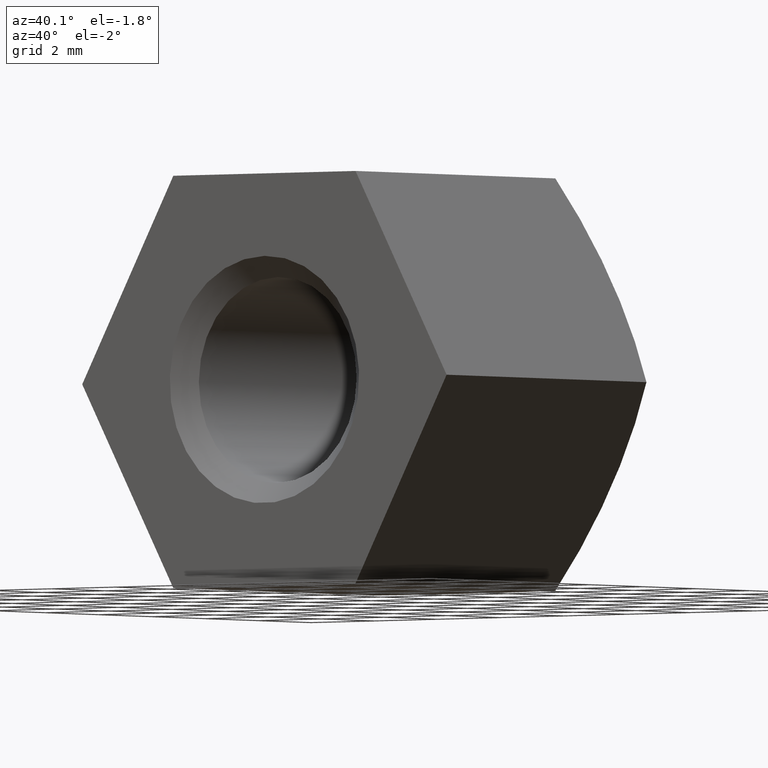
[diagram: clean part render]
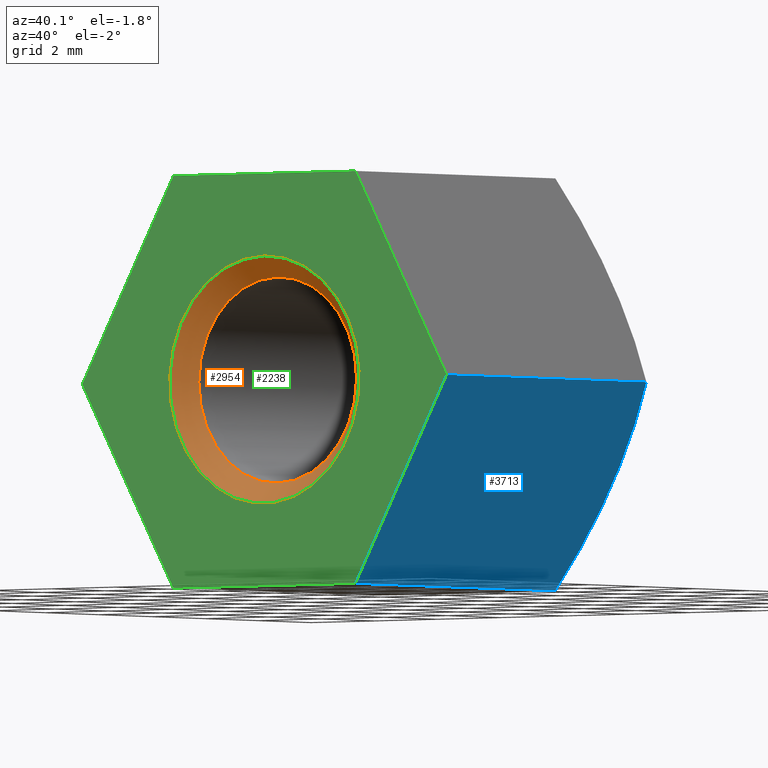
[diagram: same view with three faces highlighted in distinct colors, each labeled with its STEP entity id]
A machine part, auxiliary view with three faces highlighted in distinct colors.
Their STEP definitions:

[orange] entity #2954 — the highlighted conical surface has half-angle 45 deg.
#149 = EDGE_CURVE ( 'NONE', #7589, #7589, #13601, .T. ) ;
#263 = ORIENTED_EDGE ( 'NONE', *, *, #149, .F. ) ;
#838 = DIRECTION ( 'NONE',  ( 0.000000000000000000, 0.000000000000000000, 1.000000000000000000 ) ) ;
#1752 = DIRECTION ( 'NONE',  ( 0.000000000000000000, -1.000000000000000000, 0.000000000000000000 ) ) ;
#2279 = DIRECTION ( 'NONE',  ( 0.000000000000000000, -1.000000000000000000, 0.000000000000000000 ) ) ;
#2732 = CARTESIAN_POINT ( 'NONE',  ( 0.000000000000000000, 0.000000000000000000, 0.000000000000000000 ) ) ;
#2954 = ADVANCED_FACE ( 'NONE', ( #11353, #3035 ), #8397, .F. ) ;
#3035 = FACE_BOUND ( 'NONE', #11674, .T. ) ;
#3827 = DIRECTION ( 'NONE',  ( 0.000000000000000000, 1.000000000000000000, 0.000000000000000000 ) ) ;
#3890 = ORIENTED_EDGE ( 'NONE', *, *, #5806, .F. ) ;
#5019 = CARTESIAN_POINT ( 'NONE',  ( 0.000000000000000000, 0.000000000000000000, 2.999999999999993783 ) ) ;
#5563 = CARTESIAN_POINT ( 'NONE',  ( 0.000000000000000000, 0.5000000000000017764, 0.000000000000000000 ) ) ;
#5608 = DIRECTION ( 'NONE',  ( 0.000000000000000000, 0.000000000000000000, 1.000000000000000000 ) ) ;
#5806 = EDGE_CURVE ( 'NONE', #13622, #13622, #7826, .T. ) ;
#5833 = AXIS2_PLACEMENT_3D ( 'NONE', #5563, #2279, #5608 ) ;
#7320 = CARTESIAN_POINT ( 'NONE',  ( 0.000000000000000000, 0.5000000000000017764, 0.000000000000000000 ) ) ;
#7589 = VERTEX_POINT ( 'NONE', #10385 ) ;
#7826 = CIRCLE ( 'NONE', #11591, 2.999999999999993783 ) ;
#8397 = CONICAL_SURFACE ( 'NONE', #10934, 2.499999999999988898, 0.7853981633974517207 ) ;
#9496 = DIRECTION ( 'NONE',  ( 0.000000000000000000, 0.000000000000000000, -1.000000000000000000 ) ) ;
#10385 = CARTESIAN_POINT ( 'NONE',  ( 0.000000000000000000, 0.5000000000000017764, 2.499999999999988898 ) ) ;
#10934 = AXIS2_PLACEMENT_3D ( 'NONE', #7320, #1752, #9496 ) ;
#11353 = FACE_OUTER_BOUND ( 'NONE', #13738, .T. ) ;
#11591 = AXIS2_PLACEMENT_3D ( 'NONE', #2732, #3827, #838 ) ;
#11674 = EDGE_LOOP ( 'NONE', ( #263 ) ) ;
#13601 = CIRCLE ( 'NONE', #5833, 2.499999999999988898 ) ;
#13622 = VERTEX_POINT ( 'NONE', #5019 ) ;
#13738 = EDGE_LOOP ( 'NONE', ( #3890 ) ) ;

[blue] entity #3713 — the highlighted planar face has unit normal (-0.866, 0, 0.5).
#936 = LINE ( 'NONE', #9867, #5777 ) ;
#952 = AXIS2_PLACEMENT_3D ( 'NONE', #11639, #13854, #3809 ) ;
#1328 = PLANE ( 'NONE',  #4817 ) ;
#2192 = VECTOR ( 'NONE', #4194, 1000.000000000000000 ) ;
#2752 = VERTEX_POINT ( 'NONE', #10694 ) ;
#3713 = ADVANCED_FACE ( 'NONE', ( #4420 ), #1328, .F. ) ;
#3809 = DIRECTION ( 'NONE',  ( 0.5000000000000004441, 7.116227354264032763E-15, 0.8660254037844384856 ) ) ;
#4194 = DIRECTION ( 'NONE',  ( -0.000000000000000000, -1.000000000000000000, -0.000000000000000000 ) ) ;
#4420 = FACE_OUTER_BOUND ( 'NONE', #13612, .T. ) ;
#4479 = DIRECTION ( 'NONE',  ( 0.5000000000000004441, 0.000000000000000000, 0.8660254037844383745 ) ) ;
#4798 = EDGE_CURVE ( 'NONE', #9825, #11640, #936, .T. ) ;
#4817 = AXIS2_PLACEMENT_3D ( 'NONE', #10064, #8861, #4479 ) ;
#5077 = CARTESIAN_POINT ( 'NONE',  ( 5.773502691896258199, 7.519822558706331428, 2.168404344971009262E-15 ) ) ;
#5704 = DIRECTION ( 'NONE',  ( -0.5000000000000004441, 0.000000000000000000, -0.8660254037844383745 ) ) ;
#5777 = VECTOR ( 'NONE', #8905, 1000.000000000000000 ) ;
#5896 = CARTESIAN_POINT ( 'NONE',  ( 5.773502691896257311, 0.000000000000000000, 3.478469870610631907E-15 ) ) ;
#6336 = LINE ( 'NONE', #14104, #2192 ) ;
#6390 = EDGE_CURVE ( 'NONE', #11640, #11283, #11810, .T. ) ;
#6418 = CARTESIAN_POINT ( 'NONE',  ( 2.886751345948122438, 0.000000000000000000, -5.000000000000000888 ) ) ;
#6844 = CIRCLE ( 'NONE', #952, 10.90871211463571555 ) ;
#7430 = ORIENTED_EDGE ( 'NONE', *, *, #4798, .T. ) ;
#8861 = DIRECTION ( 'NONE',  ( -0.8660254037844383745, 0.000000000000000000, 0.5000000000000004441 ) ) ;
#8871 = VECTOR ( 'NONE', #5704, 1000.000000000000114 ) ;
#8896 = ORIENTED_EDGE ( 'NONE', *, *, #11742, .T. ) ;
#8905 = DIRECTION ( 'NONE',  ( -0.000000000000000000, -1.000000000000000000, -0.000000000000000000 ) ) ;
#9825 = VERTEX_POINT ( 'NONE', #5077 ) ;
#9867 = CARTESIAN_POINT ( 'NONE',  ( 5.773502691896257311, 9.000000000000000000, 3.478469870610631907E-15 ) ) ;
#9883 = EDGE_CURVE ( 'NONE', #2752, #11283, #6336, .T. ) ;
#10064 = CARTESIAN_POINT ( 'NONE',  ( 5.773502691896257311, 9.000000000000000000, 3.478469870610631907E-15 ) ) ;
#10694 = CARTESIAN_POINT ( 'NONE',  ( 2.886751345948126435, 7.519822558706331428, -5.000000000000001776 ) ) ;
#11283 = VERTEX_POINT ( 'NONE', #6418 ) ;
#11639 = CARTESIAN_POINT ( 'NONE',  ( 4.330127018922190096, -3.000000000000000888, -2.500000000000000444 ) ) ;
#11640 = VERTEX_POINT ( 'NONE', #5896 ) ;
#11742 = EDGE_CURVE ( 'NONE', #2752, #9825, #6844, .T. ) ;
#11810 = LINE ( 'NONE', #13567, #8871 ) ;
#13021 = ORIENTED_EDGE ( 'NONE', *, *, #9883, .F. ) ;
#13567 = CARTESIAN_POINT ( 'NONE',  ( 5.773502691896257311, 0.000000000000000000, 3.478469870610631907E-15 ) ) ;
#13612 = EDGE_LOOP ( 'NONE', ( #13021, #8896, #7430, #14267 ) ) ;
#13854 = DIRECTION ( 'NONE',  ( 0.8660254037844384856, -0.000000000000000000, -0.5000000000000004441 ) ) ;
#14104 = CARTESIAN_POINT ( 'NONE',  ( 2.886751345948122438, 9.000000000000000000, -5.000000000000000888 ) ) ;
#14267 = ORIENTED_EDGE ( 'NONE', *, *, #6390, .T. ) ;

[green] entity #2238 — the highlighted planar face has unit normal (0, 1, 0).
#252 = LINE ( 'NONE', #3170, #1316 ) ;
#306 = EDGE_LOOP ( 'NONE', ( #12069, #5576, #11244, #3744, #12542, #8521 ) ) ;
#319 = EDGE_CURVE ( 'NONE', #7372, #11640, #252, .T. ) ;
#683 = CARTESIAN_POINT ( 'NONE',  ( 0.000000000000000000, 0.000000000000000000, 0.000000000000000000 ) ) ;
#838 = DIRECTION ( 'NONE',  ( 0.000000000000000000, 0.000000000000000000, 1.000000000000000000 ) ) ;
#1316 = VECTOR ( 'NONE', #8919, 1000.000000000000000 ) ;
#1495 = FACE_BOUND ( 'NONE', #8803, .T. ) ;
#1603 = DIRECTION ( 'NONE',  ( 1.000000000000000000, 0.000000000000000000, -1.502314598737158045E-16 ) ) ;
#2024 = EDGE_CURVE ( 'NONE', #3452, #7372, #13257, .T. ) ;
#2053 = CARTESIAN_POINT ( 'NONE',  ( -2.886751345948128655, 0.000000000000000000, -5.000000000000000888 ) ) ;
#2238 = ADVANCED_FACE ( 'NONE', ( #1495, #9622 ), #13930, .F. ) ;
#2678 = VECTOR ( 'NONE', #2728, 1000.000000000000000 ) ;
#2728 = DIRECTION ( 'NONE',  ( -1.000000000000000000, 0.000000000000000000, 0.000000000000000000 ) ) ;
#2732 = CARTESIAN_POINT ( 'NONE',  ( 0.000000000000000000, 0.000000000000000000, 0.000000000000000000 ) ) ;
#2839 = VERTEX_POINT ( 'NONE', #10364 ) ;
#3170 = CARTESIAN_POINT ( 'NONE',  ( 2.886751345948132208, 0.000000000000000000, 4.999999999999995559 ) ) ;
#3452 = VERTEX_POINT ( 'NONE', #8884 ) ;
#3744 = ORIENTED_EDGE ( 'NONE', *, *, #5550, .F. ) ;
#3827 = DIRECTION ( 'NONE',  ( 0.000000000000000000, 1.000000000000000000, 0.000000000000000000 ) ) ;
#5019 = CARTESIAN_POINT ( 'NONE',  ( 0.000000000000000000, 0.000000000000000000, 2.999999999999993783 ) ) ;
#5438 = LINE ( 'NONE', #8369, #2678 ) ;
#5522 = CARTESIAN_POINT ( 'NONE',  ( -5.773502691896259087, 0.000000000000000000, -8.660844234629344595E-16 ) ) ;
#5550 = EDGE_CURVE ( 'NONE', #8040, #2839, #5598, .T. ) ;
#5576 = ORIENTED_EDGE ( 'NONE', *, *, #2024, .F. ) ;
#5598 = LINE ( 'NONE', #11154, #9231 ) ;
#5704 = DIRECTION ( 'NONE',  ( -0.5000000000000004441, 0.000000000000000000, -0.8660254037844383745 ) ) ;
#5806 = EDGE_CURVE ( 'NONE', #13622, #13622, #7826, .T. ) ;
#5896 = CARTESIAN_POINT ( 'NONE',  ( 5.773502691896257311, 0.000000000000000000, 3.478469870610631907E-15 ) ) ;
#6390 = EDGE_CURVE ( 'NONE', #11640, #11283, #11810, .T. ) ;
#6418 = CARTESIAN_POINT ( 'NONE',  ( 2.886751345948122438, 0.000000000000000000, -5.000000000000000888 ) ) ;
#7372 = VERTEX_POINT ( 'NONE', #13898 ) ;
#7826 = CIRCLE ( 'NONE', #11591, 2.999999999999993783 ) ;
#7888 = VECTOR ( 'NONE', #1603, 1000.000000000000000 ) ;
#8040 = VERTEX_POINT ( 'NONE', #2053 ) ;
#8369 = CARTESIAN_POINT ( 'NONE',  ( 2.886751345948122438, 0.000000000000000000, -5.000000000000000888 ) ) ;
#8439 = VECTOR ( 'NONE', #12286, 1000.000000000000114 ) ;
#8521 = ORIENTED_EDGE ( 'NONE', *, *, #6390, .F. ) ;
#8803 = EDGE_LOOP ( 'NONE', ( #9654 ) ) ;
#8871 = VECTOR ( 'NONE', #5704, 1000.000000000000114 ) ;
#8884 = CARTESIAN_POINT ( 'NONE',  ( -2.886751345948129988, 0.000000000000000000, 4.999999999999996447 ) ) ;
#8919 = DIRECTION ( 'NONE',  ( 0.5000000000000001110, 0.000000000000000000, -0.8660254037844385966 ) ) ;
#9017 = DIRECTION ( 'NONE',  ( -0.5000000000000002220, 0.000000000000000000, 0.8660254037844384856 ) ) ;
#9231 = VECTOR ( 'NONE', #9017, 1000.000000000000114 ) ;
#9578 = DIRECTION ( 'NONE',  ( 0.000000000000000000, -0.000000000000000000, 1.000000000000000000 ) ) ;
#9622 = FACE_OUTER_BOUND ( 'NONE', #306, .T. ) ;
#9654 = ORIENTED_EDGE ( 'NONE', *, *, #5806, .T. ) ;
#10318 = CARTESIAN_POINT ( 'NONE',  ( -2.886751345948129988, 0.000000000000000000, 4.999999999999996447 ) ) ;
#10364 = CARTESIAN_POINT ( 'NONE',  ( -5.773502691896259087, 0.000000000000000000, -8.660844234629344595E-16 ) ) ;
#11154 = CARTESIAN_POINT ( 'NONE',  ( -2.886751345948128655, 0.000000000000000000, -5.000000000000000888 ) ) ;
#11244 = ORIENTED_EDGE ( 'NONE', *, *, #14151, .F. ) ;
#11283 = VERTEX_POINT ( 'NONE', #6418 ) ;
#11393 = LINE ( 'NONE', #5522, #8439 ) ;
#11459 = EDGE_CURVE ( 'NONE', #11283, #8040, #5438, .T. ) ;
#11591 = AXIS2_PLACEMENT_3D ( 'NONE', #2732, #3827, #838 ) ;
#11640 = VERTEX_POINT ( 'NONE', #5896 ) ;
#11810 = LINE ( 'NONE', #13567, #8871 ) ;
#12069 = ORIENTED_EDGE ( 'NONE', *, *, #319, .F. ) ;
#12286 = DIRECTION ( 'NONE',  ( 0.5000000000000002220, 0.000000000000000000, 0.8660254037844384856 ) ) ;
#12542 = ORIENTED_EDGE ( 'NONE', *, *, #11459, .F. ) ;
#12865 = DIRECTION ( 'NONE',  ( 0.000000000000000000, 1.000000000000000000, 0.000000000000000000 ) ) ;
#13257 = LINE ( 'NONE', #10318, #7888 ) ;
#13567 = CARTESIAN_POINT ( 'NONE',  ( 5.773502691896257311, 0.000000000000000000, 3.478469870610631907E-15 ) ) ;
#13622 = VERTEX_POINT ( 'NONE', #5019 ) ;
#13692 = AXIS2_PLACEMENT_3D ( 'NONE', #683, #12865, #9578 ) ;
#13898 = CARTESIAN_POINT ( 'NONE',  ( 2.886751345948132208, 0.000000000000000000, 4.999999999999995559 ) ) ;
#13930 = PLANE ( 'NONE',  #13692 ) ;
#14151 = EDGE_CURVE ( 'NONE', #2839, #3452, #11393, .T. ) ;